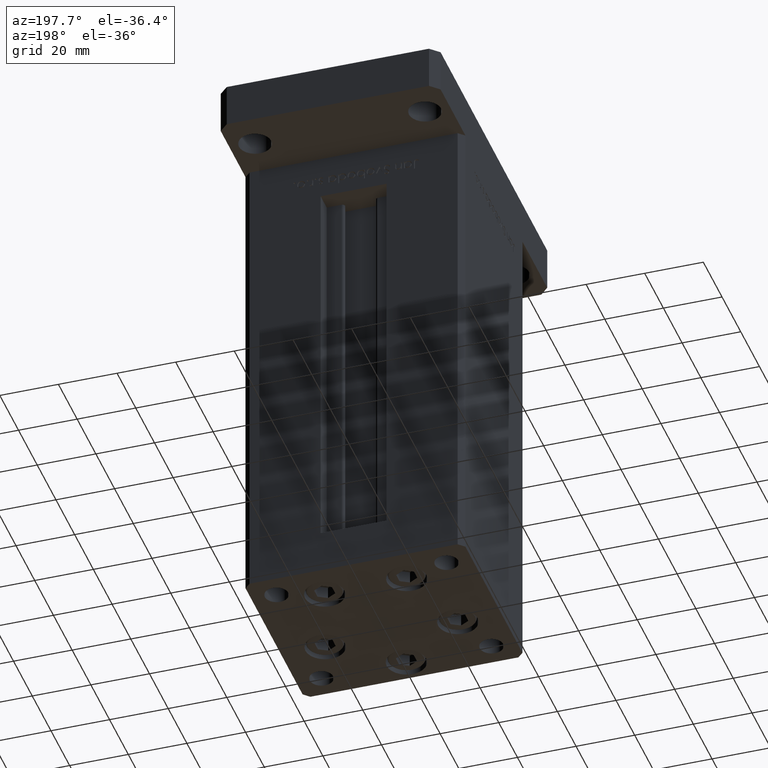
[diagram: clean part render]
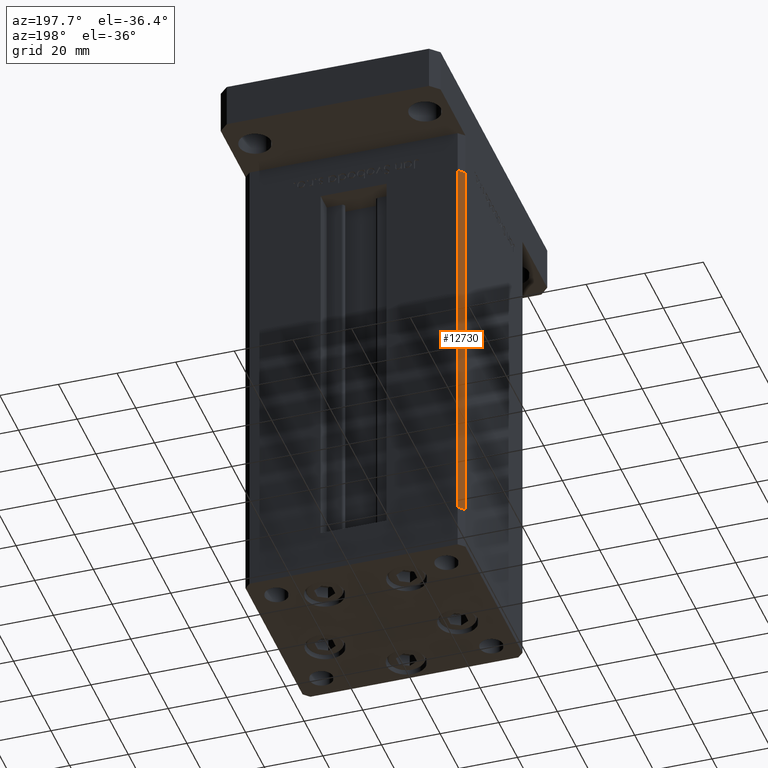
[diagram: same view with one face highlighted and labeled with its STEP entity id]
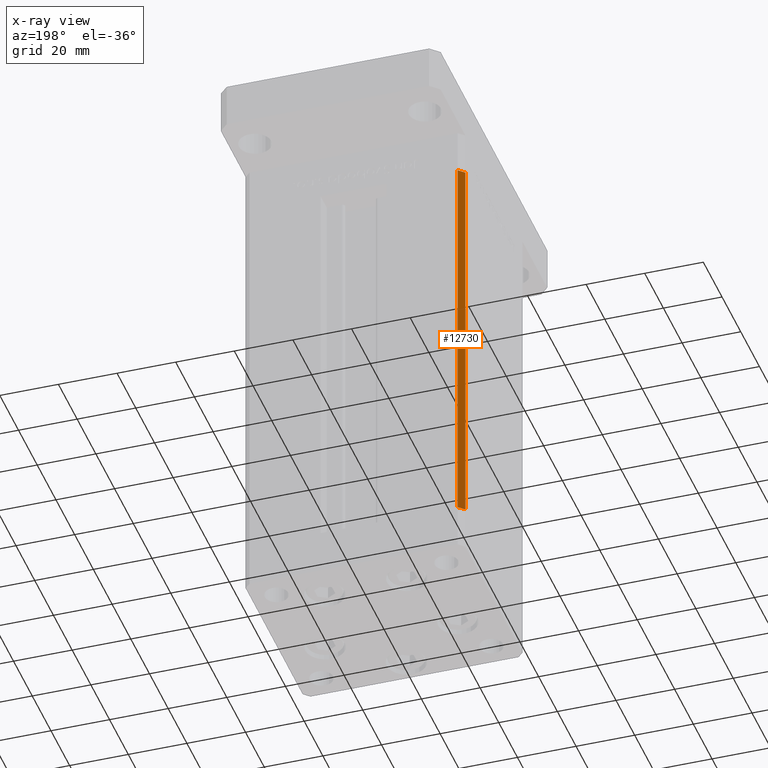
[diagram: x-ray of the same camera — body ghosted, the highlighted face saturated]
A machine part, auxiliary view. The second image highlights one B-rep face of the part: STEP entity #12730.
The next image is the same camera in x-ray: the body ghosted, the highlighted face saturated — about 0% of this face is hidden behind the body in this view.
In plain terms, the highlighted planar face has unit normal (0.7071, -0.7071, 0).
Its self-contained STEP definition (entity closure, byte-faithful):
#1000 = LINE ( 'NONE', #21390, #48020 ) ;
#3281 = CARTESIAN_POINT ( 'NONE',  ( -35.50000000000000000, 32.49999999999999289, 0.000000000000000000 ) ) ;
#8415 = VERTEX_POINT ( 'NONE', #32985 ) ;
#9861 = VERTEX_POINT ( 'NONE', #43430 ) ;
#12730 = ADVANCED_FACE ( 'NONE', ( #41703 ), #30327, .F. ) ;
#12751 = ORIENTED_EDGE ( 'NONE', *, *, #22902, .T. ) ;
#13045 = CARTESIAN_POINT ( 'NONE',  ( -37.50000000000000711, 30.50000000000000000, 136.0000000000000000 ) ) ;
#13878 = EDGE_LOOP ( 'NONE', ( #12751, #14977, #33439, #22259 ) ) ;
#14977 = ORIENTED_EDGE ( 'NONE', *, *, #41665, .F. ) ;
#15119 = VERTEX_POINT ( 'NONE', #27365 ) ;
#16481 = AXIS2_PLACEMENT_3D ( 'NONE', #46050, #21947, #45778 ) ;
#16516 = DIRECTION ( 'NONE',  ( -0.7071067811865500152, -0.7071067811865451302, 0.000000000000000000 ) ) ;
#20079 = VECTOR ( 'NONE', #20411, 1000.000000000000000 ) ;
#20411 = DIRECTION ( 'NONE',  ( -0.000000000000000000, -0.000000000000000000, -1.000000000000000000 ) ) ;
#21390 = CARTESIAN_POINT ( 'NONE',  ( -35.50000000000000000, 32.49999999999999289, 136.0000000000000000 ) ) ;
#21947 = DIRECTION ( 'NONE',  ( 0.7071067811865451302, -0.7071067811865500152, 0.000000000000000000 ) ) ;
#22259 = ORIENTED_EDGE ( 'NONE', *, *, #34167, .T. ) ;
#22902 = EDGE_CURVE ( 'NONE', #8415, #15119, #49085, .T. ) ;
#25592 = VERTEX_POINT ( 'NONE', #46822 ) ;
#27365 = CARTESIAN_POINT ( 'NONE',  ( -37.50000000000000711, 30.50000000000000000, 0.000000000000000000 ) ) ;
#29575 = LINE ( 'NONE', #13045, #51475 ) ;
#30327 = PLANE ( 'NONE',  #16481 ) ;
#32985 = CARTESIAN_POINT ( 'NONE',  ( -35.50000000000000000, 32.49999999999999289, 0.000000000000000000 ) ) ;
#33439 = ORIENTED_EDGE ( 'NONE', *, *, #46815, .F. ) ;
#34167 = EDGE_CURVE ( 'NONE', #9861, #8415, #44238, .T. ) ;
#39881 = DIRECTION ( 'NONE',  ( -0.7071067811865500152, -0.7071067811865451302, 0.000000000000000000 ) ) ;
#40424 = CARTESIAN_POINT ( 'NONE',  ( -35.50000000000000000, 32.49999999999999289, 136.0000000000000000 ) ) ;
#41665 = EDGE_CURVE ( 'NONE', #25592, #15119, #29575, .T. ) ;
#41703 = FACE_OUTER_BOUND ( 'NONE', #13878, .T. ) ;
#43430 = CARTESIAN_POINT ( 'NONE',  ( -35.50000000000000000, 32.49999999999999289, 136.0000000000000000 ) ) ;
#44238 = LINE ( 'NONE', #40424, #20079 ) ;
#45778 = DIRECTION ( 'NONE',  ( 0.7071067811865500152, 0.7071067811865451302, 0.000000000000000000 ) ) ;
#46050 = CARTESIAN_POINT ( 'NONE',  ( -35.50000000000000000, 32.49999999999999289, 136.0000000000000000 ) ) ;
#46672 = VECTOR ( 'NONE', #39881, 1000.000000000000114 ) ;
#46815 = EDGE_CURVE ( 'NONE', #9861, #25592, #1000, .T. ) ;
#46822 = CARTESIAN_POINT ( 'NONE',  ( -37.50000000000000711, 30.50000000000000000, 136.0000000000000000 ) ) ;
#48020 = VECTOR ( 'NONE', #16516, 1000.000000000000114 ) ;
#49085 = LINE ( 'NONE', #3281, #46672 ) ;
#49352 = DIRECTION ( 'NONE',  ( -0.000000000000000000, -0.000000000000000000, -1.000000000000000000 ) ) ;
#51475 = VECTOR ( 'NONE', #49352, 1000.000000000000000 ) ;